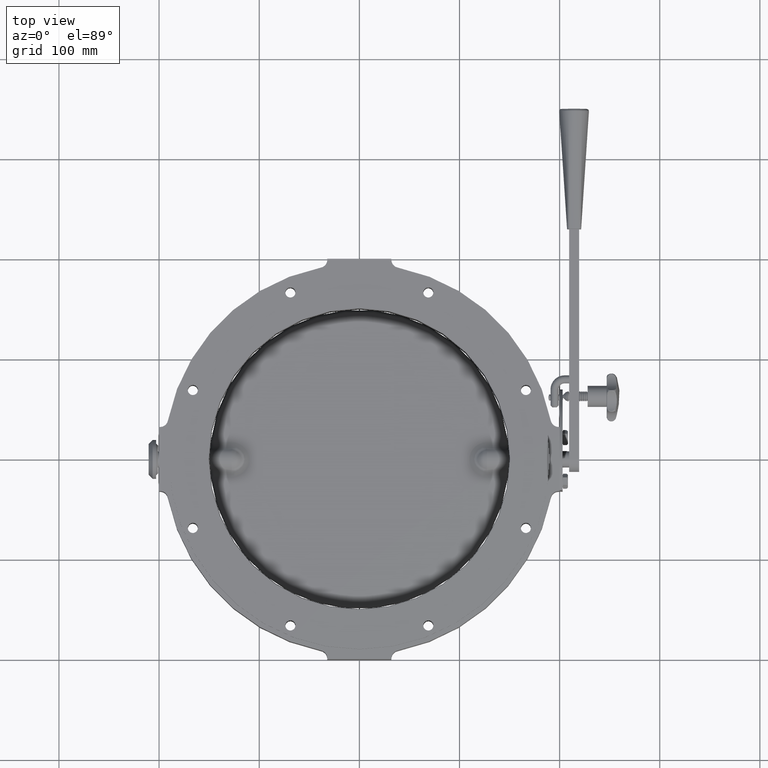
[diagram: clean part render]
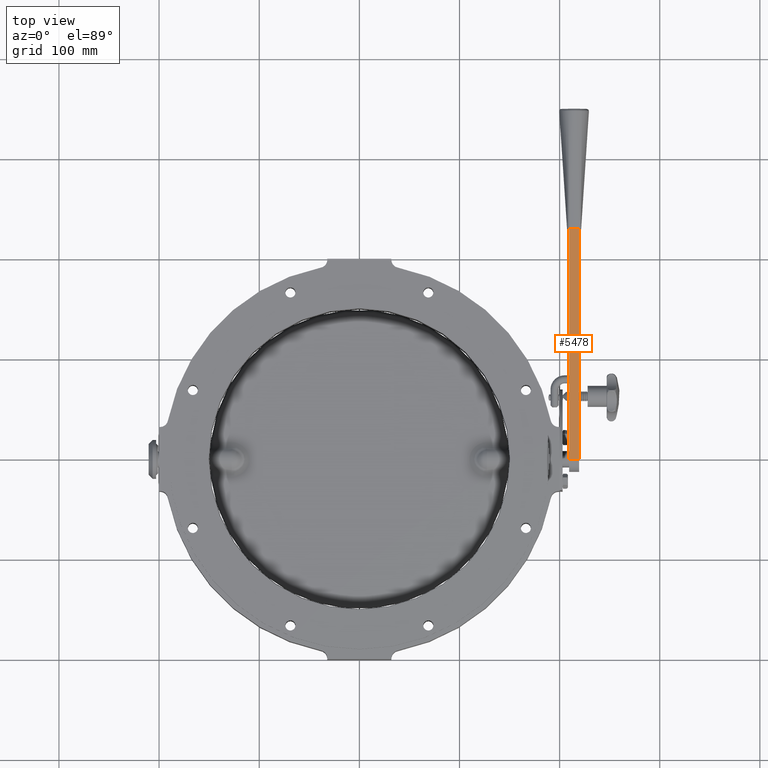
[diagram: same view with one face highlighted and labeled with its STEP entity id]
A machine part, top view. The second image highlights one B-rep face of the part: STEP entity #5478.
In plain terms, the highlighted planar face has unit normal (0, 0, 1).
Its self-contained STEP definition (entity closure, byte-faithful):
#964 = CARTESIAN_POINT ( 'NONE',  ( 219.4500000000000500, 2.840563194956663900E-014, 12.50000000000001400 ) ) ;
#966 = CARTESIAN_POINT ( 'NONE',  ( 209.4500000000000200, 2.718098515041928400E-014, 12.50000000000001400 ) ) ;
#968 = CARTESIAN_POINT ( 'NONE',  ( 209.4499999999999600, 229.9999999999999700, 12.49999999999999600 ) ) ;
#970 = CARTESIAN_POINT ( 'NONE',  ( 219.4500000000000200, 229.9999999999999700, 12.49999999999999600 ) ) ;
#2182 = PLANE ( 'NONE',  #6087 ) ;
#2184 = CARTESIAN_POINT ( 'NONE',  ( 209.4500000000000200, 2.718098515041928400E-014, 12.50000000000001400 ) ) ;
#2188 = FACE_OUTER_BOUND ( 'NONE', #6374, .T. ) ;
#2190 = DIRECTION ( 'NONE',  ( 2.330051680291210700E-017, 7.434529182757745400E-017, 1.000000000000000000 ) ) ;
#2191 = DIRECTION ( 'NONE',  ( 0.0000000000000000000, -1.000000000000000000, 7.434529182757745400E-017 ) ) ;
#3027 = VECTOR ( 'NONE', #10544, 1000.000000000000000 ) ;
#5478 = ADVANCED_FACE ( 'NONE', ( #2188 ), #2182, .T. ) ;
#6087 = AXIS2_PLACEMENT_3D ( 'NONE', #2184, #2190, #2191 ) ;
#6336 = ORIENTED_EDGE ( 'NONE', *, *, #6926, .F. ) ;
#6339 = ORIENTED_EDGE ( 'NONE', *, *, #6928, .T. ) ;
#6343 = ORIENTED_EDGE ( 'NONE', *, *, #6947, .T. ) ;
#6363 = ORIENTED_EDGE ( 'NONE', *, *, #6927, .T. ) ;
#6374 = EDGE_LOOP ( 'NONE', ( #6336, #6363, #6343, #6339 ) ) ;
#6926 = EDGE_CURVE ( 'NONE', #7455, #7449, #10477, .T. ) ;
#6927 = EDGE_CURVE ( 'NONE', #7455, #7453, #10478, .T. ) ;
#6928 = EDGE_CURVE ( 'NONE', #7451, #7449, #10479, .T. ) ;
#6947 = EDGE_CURVE ( 'NONE', #7453, #7451, #10533, .T. ) ;
#7449 = VERTEX_POINT ( 'NONE', #964 ) ;
#7451 = VERTEX_POINT ( 'NONE', #966 ) ;
#7453 = VERTEX_POINT ( 'NONE', #968 ) ;
#7455 = VERTEX_POINT ( 'NONE', #970 ) ;
#10473 = CARTESIAN_POINT ( 'NONE',  ( 219.4500000000000500, 2.840563194956663900E-014, 12.50000000000001400 ) ) ;
#10477 = LINE ( 'NONE', #10473, #12216 ) ;
#10478 = LINE ( 'NONE', #10485, #11840 ) ;
#10479 = LINE ( 'NONE', #10487, #11820 ) ;
#10484 = DIRECTION ( 'NONE',  ( 1.586032892321652500E-016, -1.000000000000000000, 7.434529182757745400E-017 ) ) ;
#10485 = CARTESIAN_POINT ( 'NONE',  ( 209.4499999999999900, 229.9999999999999700, 12.49999999999999600 ) ) ;
#10486 = DIRECTION ( 'NONE',  ( -1.000000000000000000, -1.224646799147353000E-016, 2.330051680291211600E-017 ) ) ;
#10487 = CARTESIAN_POINT ( 'NONE',  ( 209.4500000000000200, 2.718098515041928400E-014, 12.50000000000001400 ) ) ;
#10488 = DIRECTION ( 'NONE',  ( 1.000000000000000000, 1.224646799147353000E-016, -2.330051680291211600E-017 ) ) ;
#10529 = CARTESIAN_POINT ( 'NONE',  ( 209.4500000000000200, 2.718098515041928400E-014, 12.50000000000001400 ) ) ;
#10533 = LINE ( 'NONE', #10529, #3027 ) ;
#10544 = DIRECTION ( 'NONE',  ( 1.586032892321652500E-016, -1.000000000000000000, 7.434529182757745400E-017 ) ) ;
#11820 = VECTOR ( 'NONE', #10488, 1000.000000000000000 ) ;
#11840 = VECTOR ( 'NONE', #10486, 1000.000000000000000 ) ;
#12216 = VECTOR ( 'NONE', #10484, 1000.000000000000000 ) ;